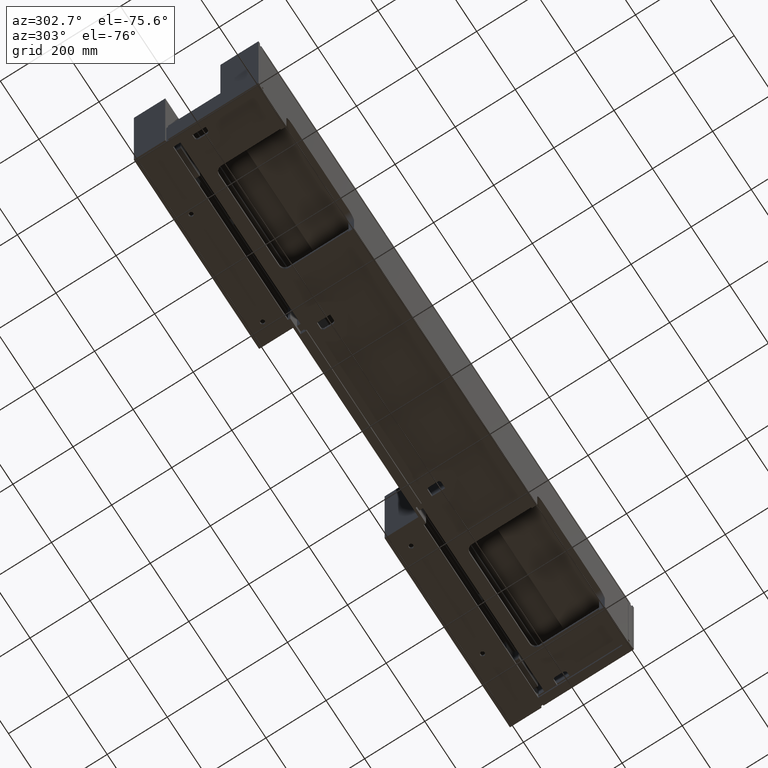
[diagram: clean part render]
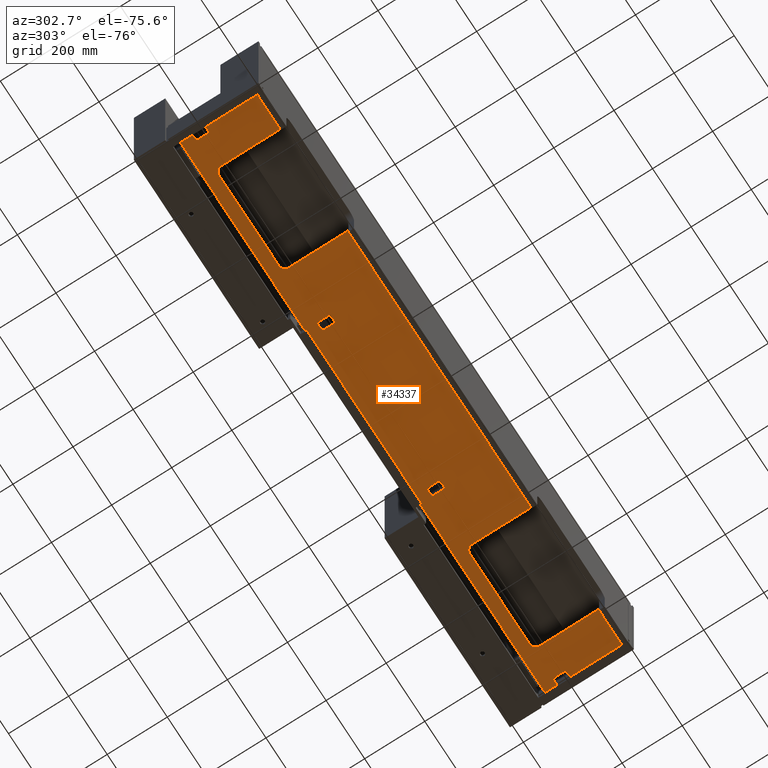
[diagram: same view with one face highlighted and labeled with its STEP entity id]
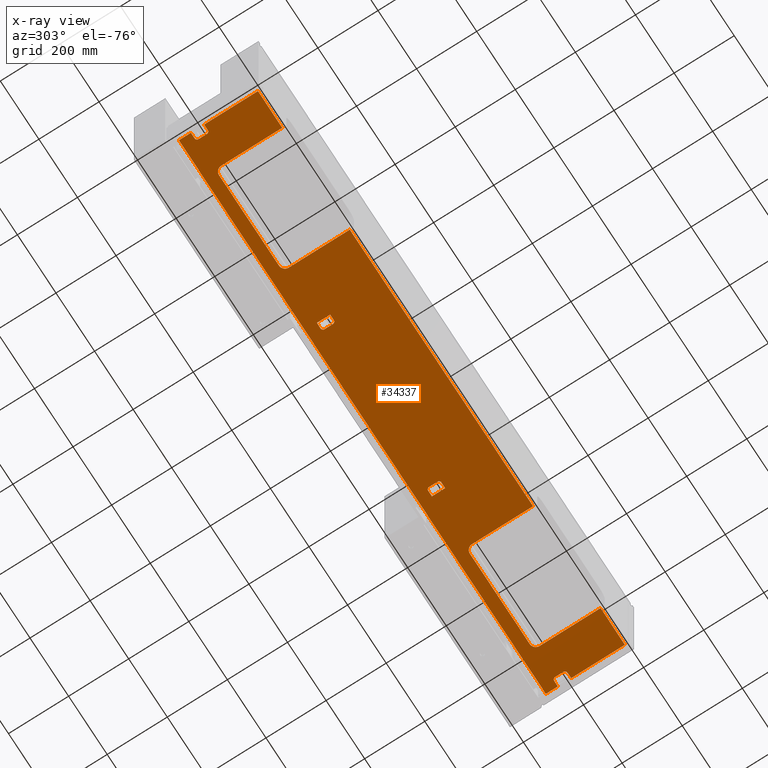
[diagram: x-ray of the same camera — body ghosted, the highlighted face saturated]
A machine part, auxiliary view. The second image highlights one B-rep face of the part: STEP entity #34337.
The next image is the same camera in x-ray: the body ghosted, the highlighted face saturated — about 0% of this face is hidden behind the body in this view.
In plain terms, the highlighted planar face has unit normal (0, -0, 1).
Its self-contained STEP definition (entity closure, byte-faithful):
#3 = LINE ( 'NONE', #11001, #25932 ) ;
#8 = VECTOR ( 'NONE', #2222, 1000.000000000000000 ) ;
#91 = ORIENTED_EDGE ( 'NONE', *, *, #30618, .F. ) ;
#252 = VERTEX_POINT ( 'NONE', #24749 ) ;
#375 = AXIS2_PLACEMENT_3D ( 'NONE', #7619, #18617, #29566 ) ;
#499 = CARTESIAN_POINT ( 'NONE',  ( 1906.999999999999773, 202.0000000000000000, -456.5000000000002842 ) ) ;
#704 = EDGE_CURVE ( 'NONE', #8030, #252, #30701, .T. ) ;
#712 = EDGE_CURVE ( 'NONE', #8847, #15838, #28373, .T. ) ;
#790 = DIRECTION ( 'NONE',  ( -0.0000000000000000000, 0.0000000000000000000, -1.000000000000000000 ) ) ;
#983 = EDGE_CURVE ( 'NONE', #32020, #17701, #12302, .T. ) ;
#999 = CARTESIAN_POINT ( 'NONE',  ( 1906.999999999999773, 194.0000000000000000, -456.5000000000002842 ) ) ;
#1305 = CARTESIAN_POINT ( 'NONE',  ( 1273.000000000000227, 193.9999999999998863, -456.5000000000003979 ) ) ;
#1311 = AXIS2_PLACEMENT_3D ( 'NONE', #25486, #790, #11804 ) ;
#1379 = ORIENTED_EDGE ( 'NONE', *, *, #29538, .F. ) ;
#1395 = EDGE_CURVE ( 'NONE', #2235, #2396, #29168, .T. ) ;
#1548 = EDGE_CURVE ( 'NONE', #31364, #23315, #8299, .T. ) ;
#1563 = ORIENTED_EDGE ( 'NONE', *, *, #31456, .F. ) ;
#1588 = DIRECTION ( 'NONE',  ( 1.000000000000000000, 0.0000000000000000000, 0.0000000000000000000 ) ) ;
#1609 = CARTESIAN_POINT ( 'NONE',  ( 50.99999999999982236, 230.0000000000000284, -456.5000000000002842 ) ) ;
#1763 = CIRCLE ( 'NONE', #21948, 8.000000000000007105 ) ;
#1785 = EDGE_CURVE ( 'NONE', #9377, #31032, #6065, .T. ) ;
#1947 = LINE ( 'NONE', #12975, #13549 ) ;
#2222 = DIRECTION ( 'NONE',  ( -1.000000000000000000, 0.0000000000000000000, 0.0000000000000000000 ) ) ;
#2235 = VERTEX_POINT ( 'NONE', #1305 ) ;
#2396 = VERTEX_POINT ( 'NONE', #13044 ) ;
#2406 = DIRECTION ( 'NONE',  ( 0.0000000000000000000, 0.0000000000000000000, -1.000000000000000000 ) ) ;
#2703 = EDGE_CURVE ( 'NONE', #24983, #4910, #6334, .T. ) ;
#2808 = ORIENTED_EDGE ( 'NONE', *, *, #704, .F. ) ;
#2873 = DIRECTION ( 'NONE',  ( -1.000000000000000000, 0.0000000000000000000, 0.0000000000000000000 ) ) ;
#2907 = DIRECTION ( 'NONE',  ( 1.000000000000000000, -1.460819769243634230E-15, 0.0000000000000000000 ) ) ;
#3006 = VECTOR ( 'NONE', #4336, 1000.000000000000000 ) ;
#3252 = ORIENTED_EDGE ( 'NONE', *, *, #22529, .F. ) ;
#3382 = LINE ( 'NONE', #14417, #4766 ) ;
#3492 = AXIS2_PLACEMENT_3D ( 'NONE', #17268, #12048, #23018 ) ;
#3575 = EDGE_CURVE ( 'NONE', #15220, #17377, #32897, .T. ) ;
#3629 = VERTEX_POINT ( 'NONE', #5939 ) ;
#3662 = CARTESIAN_POINT ( 'NONE',  ( 1273.000000000000227, 237.9999999999999432, -456.5000000000002842 ) ) ;
#3860 = CARTESIAN_POINT ( 'NONE',  ( 24.00000000000002132, 2181.067296390955562, -456.5000000000002842 ) ) ;
#3870 = ORIENTED_EDGE ( 'NONE', *, *, #9944, .F. ) ;
#3956 = CARTESIAN_POINT ( 'NONE',  ( 1254.000000000000455, 237.9999999999999432, -456.5000000000002842 ) ) ;
#4015 = DIRECTION ( 'NONE',  ( -0.0000000000000000000, 1.000000000000000000, -0.0000000000000000000 ) ) ;
#4020 = DIRECTION ( 'NONE',  ( -1.000000000000000000, 0.0000000000000000000, 0.0000000000000000000 ) ) ;
#4035 = EDGE_CURVE ( 'NONE', #32469, #8847, #5934, .T. ) ;
#4241 = EDGE_CURVE ( 'NONE', #24538, #27696, #8666, .T. ) ;
#4336 = DIRECTION ( 'NONE',  ( -1.000000000000000000, -1.460819769243634230E-15, -0.0000000000000000000 ) ) ;
#4477 = VERTEX_POINT ( 'NONE', #15307 ) ;
#4483 = CARTESIAN_POINT ( 'NONE',  ( 1273.000000000000227, 193.9999999999999432, -456.5000000000002842 ) ) ;
#4515 = CARTESIAN_POINT ( 'NONE',  ( 695.9999999999997726, 193.9999999999999432, -456.5000000000002842 ) ) ;
#4669 = CARTESIAN_POINT ( 'NONE',  ( 1273.000000000000227, 237.9999999999999432, -456.5000000000002842 ) ) ;
#4685 = EDGE_CURVE ( 'NONE', #6682, #15220, #13370, .T. ) ;
#4760 = VERTEX_POINT ( 'NONE', #11149 ) ;
#4766 = VECTOR ( 'NONE', #25392, 1000.000000000000000 ) ;
#4777 = VERTEX_POINT ( 'NONE', #8454 ) ;
#4885 = VERTEX_POINT ( 'NONE', #10218 ) ;
#4910 = VERTEX_POINT ( 'NONE', #18511 ) ;
#5292 = EDGE_CURVE ( 'NONE', #23315, #25733, #5451, .T. ) ;
#5451 = LINE ( 'NONE', #16463, #25408 ) ;
#5561 = EDGE_CURVE ( 'NONE', #4777, #4760, #6090, .T. ) ;
#5602 = EDGE_CURVE ( 'NONE', #4885, #15790, #23666, .T. ) ;
#5667 = ORIENTED_EDGE ( 'NONE', *, *, #5751, .T. ) ;
#5690 = LINE ( 'NONE', #16696, #6888 ) ;
#5726 = AXIS2_PLACEMENT_3D ( 'NONE', #31861, #7245, #18249 ) ;
#5751 = EDGE_CURVE ( 'NONE', #3629, #18149, #24448, .T. ) ;
#5934 = CIRCLE ( 'NONE', #1311, 8.000000000000007105 ) ;
#5939 = CARTESIAN_POINT ( 'NONE',  ( 1450.000000000000000, 15.00000000000004086, -456.5000000000003979 ) ) ;
#6065 = LINE ( 'NONE', #17068, #34626 ) ;
#6090 = LINE ( 'NONE', #17089, #11024 ) ;
#6209 = EDGE_CURVE ( 'NONE', #4777, #4477, #30776, .T. ) ;
#6334 = LINE ( 'NONE', #17330, #10497 ) ;
#6396 = DIRECTION ( 'NONE',  ( -9.160255978755420617E-17, 0.0000000000000000000, -1.000000000000000000 ) ) ;
#6405 = VERTEX_POINT ( 'NONE', #14962 ) ;
#6606 = LINE ( 'NONE', #17607, #19289 ) ;
#6682 = VERTEX_POINT ( 'NONE', #8464 ) ;
#6865 = AXIS2_PLACEMENT_3D ( 'NONE', #11291, #22274, #33173 ) ;
#6888 = VECTOR ( 'NONE', #27688, 1000.000000000000000 ) ;
#7007 = CARTESIAN_POINT ( 'NONE',  ( 150.0000000000000284, 218.0000000000000853, -456.5000000000002842 ) ) ;
#7019 = CARTESIAN_POINT ( 'NONE',  ( 42.99999999999992895, 194.0000000000000284, -456.5000000000002842 ) ) ;
#7049 = CARTESIAN_POINT ( 'NONE',  ( 676.9999999999997726, 237.9999999999999432, -456.5000000000003411 ) ) ;
#7130 = ORIENTED_EDGE ( 'NONE', *, *, #19456, .F. ) ;
#7167 = ORIENTED_EDGE ( 'NONE', *, *, #5292, .F. ) ;
#7200 = CARTESIAN_POINT ( 'NONE',  ( 1273.000000000000227, 237.9999999999999432, -456.5000000000002842 ) ) ;
#7245 = DIRECTION ( 'NONE',  ( -9.160255978755420617E-17, 0.0000000000000000000, -1.000000000000000000 ) ) ;
#7619 = CARTESIAN_POINT ( 'NONE',  ( 24.00000000000002132, 2181.067296390955562, -456.5000000000002842 ) ) ;
#7628 = CARTESIAN_POINT ( 'NONE',  ( 1246.000000000000455, 229.9999999999999147, -456.5000000000002842 ) ) ;
#7632 = ORIENTED_EDGE ( 'NONE', *, *, #15895, .F. ) ;
#7682 = EDGE_CURVE ( 'NONE', #11525, #4760, #28559, .T. ) ;
#8030 = VERTEX_POINT ( 'NONE', #30244 ) ;
#8205 = LINE ( 'NONE', #19201, #11300 ) ;
#8299 = LINE ( 'NONE', #19288, #22662 ) ;
#8314 = CARTESIAN_POINT ( 'NONE',  ( 703.9999999999997726, 229.9999999999999432, -456.5000000000002842 ) ) ;
#8421 = EDGE_CURVE ( 'NONE', #23777, #11525, #8205, .T. ) ;
#8454 = CARTESIAN_POINT ( 'NONE',  ( 150.6350832689630295, 15.00000000000001421, -456.5000000000002842 ) ) ;
#8464 = CARTESIAN_POINT ( 'NONE',  ( 695.9999999999997726, 237.9999999999999147, -456.5000000000002842 ) ) ;
#8666 = LINE ( 'NONE', #19656, #17446 ) ;
#8676 = EDGE_LOOP ( 'NONE', ( #23304, #23167, #22472, #21939, #21403, #21365 ) ) ;
#8678 = DIRECTION ( 'NONE',  ( -9.160255978755420617E-17, 0.0000000000000000000, -1.000000000000000000 ) ) ;
#8691 = CARTESIAN_POINT ( 'NONE',  ( 24.00000000000002132, 194.0000000000000000, -456.5000000000002842 ) ) ;
#8703 = DIRECTION ( 'NONE',  ( -0.0000000000000000000, 0.0000000000000000000, -1.000000000000000000 ) ) ;
#8847 = VERTEX_POINT ( 'NONE', #3956 ) ;
#9018 = DIRECTION ( 'NONE',  ( -0.0000000000000000000, 1.000000000000000000, -0.0000000000000000000 ) ) ;
#9094 = ORIENTED_EDGE ( 'NONE', *, *, #19647, .F. ) ;
#9104 = CARTESIAN_POINT ( 'NONE',  ( 480.0000000000000000, 238.0000000000000568, -456.5000000000003411 ) ) ;
#9358 = EDGE_CURVE ( 'NONE', #15790, #17701, #6606, .T. ) ;
#9377 = VERTEX_POINT ( 'NONE', #32480 ) ;
#9624 = ORIENTED_EDGE ( 'NONE', *, *, #17693, .F. ) ;
#9716 = LINE ( 'NONE', #20704, #25874 ) ;
#9820 = EDGE_CURVE ( 'NONE', #31364, #32020, #12439, .T. ) ;
#9899 = CIRCLE ( 'NONE', #30017, 7.999999999999986677 ) ;
#9944 = EDGE_CURVE ( 'NONE', #4477, #17697, #1947, .T. ) ;
#10165 = CIRCLE ( 'NONE', #30277, 19.99999999999998934 ) ;
#10201 = ORIENTED_EDGE ( 'NONE', *, *, #18792, .F. ) ;
#10218 = CARTESIAN_POINT ( 'NONE',  ( 1898.999999999999773, 230.0000000000000000, -456.5000000000002842 ) ) ;
#10272 = CIRCLE ( 'NONE', #30390, 7.999999999999979572 ) ;
#10322 = FACE_BOUND ( 'NONE', #25551, .T. ) ;
#10446 = DIRECTION ( 'NONE',  ( -0.0000000000000000000, 1.000000000000000000, -0.0000000000000000000 ) ) ;
#10468 = CARTESIAN_POINT ( 'NONE',  ( 42.99999999999992895, 230.0000000000000284, -456.5000000000002842 ) ) ;
#10497 = VECTOR ( 'NONE', #28306, 1000.000000000000000 ) ;
#10548 = AXIS2_PLACEMENT_3D ( 'NONE', #27115, #2406, #13439 ) ;
#10605 = AXIS2_PLACEMENT_3D ( 'NONE', #31040, #6396, #17397 ) ;
#10660 = VECTOR ( 'NONE', #34298, 1000.000000000000000 ) ;
#10761 = DIRECTION ( 'NONE',  ( -1.000000000000000000, -0.0000000000000000000, 8.755702086949185103E-17 ) ) ;
#11001 = CARTESIAN_POINT ( 'NONE',  ( 1800.000000000000000, 218.0000000000000284, -456.5000000000004547 ) ) ;
#11024 = VECTOR ( 'NONE', #28074, 1000.000000000000000 ) ;
#11149 = CARTESIAN_POINT ( 'NONE',  ( 24.00000000000002132, 15.00000000000001421, -456.5000000000002842 ) ) ;
#11271 = VECTOR ( 'NONE', #14885, 1000.000000000000000 ) ;
#11288 = AXIS2_PLACEMENT_3D ( 'NONE', #499, #11510, #22493 ) ;
#11291 = CARTESIAN_POINT ( 'NONE',  ( 1780.000000000000000, 218.0000000000000284, -456.5000000000004547 ) ) ;
#11300 = VECTOR ( 'NONE', #30157, 1000.000000000000000 ) ;
#11317 = ORIENTED_EDGE ( 'NONE', *, *, #21825, .F. ) ;
#11448 = ORIENTED_EDGE ( 'NONE', *, *, #2703, .T. ) ;
#11510 = DIRECTION ( 'NONE',  ( 0.0000000000000000000, 0.0000000000000000000, -1.000000000000000000 ) ) ;
#11525 = VERTEX_POINT ( 'NONE', #8691 ) ;
#11787 = VECTOR ( 'NONE', #10761, 1000.000000000000000 ) ;
#11804 = DIRECTION ( 'NONE',  ( 1.000000000000000000, 0.0000000000000000000, 0.0000000000000000000 ) ) ;
#12048 = DIRECTION ( 'NONE',  ( -0.0000000000000000000, 0.0000000000000000000, -1.000000000000000000 ) ) ;
#12302 = LINE ( 'NONE', #23278, #17486 ) ;
#12315 = CARTESIAN_POINT ( 'NONE',  ( 24.00000000000002132, 278.0000000000000000, -456.5000000000002842 ) ) ;
#12418 = CARTESIAN_POINT ( 'NONE',  ( 1246.000000000000455, 201.9999999999999432, -456.5000000000002842 ) ) ;
#12439 = LINE ( 'NONE', #23418, #10660 ) ;
#12642 = CARTESIAN_POINT ( 'NONE',  ( 1906.999999999999773, 238.0000000000000284, -456.5000000000002842 ) ) ;
#12774 = CARTESIAN_POINT ( 'NONE',  ( 1925.999999999999773, 238.0000000000000284, -456.5000000000002842 ) ) ;
#12975 = CARTESIAN_POINT ( 'NONE',  ( 150.0000000000000284, 218.0000000000000853, -456.5000000000002842 ) ) ;
#13041 = ORIENTED_EDGE ( 'NONE', *, *, #26765, .T. ) ;
#13044 = CARTESIAN_POINT ( 'NONE',  ( 1254.000000000000455, 193.9999999999999432, -456.5000000000002842 ) ) ;
#13087 = ORIENTED_EDGE ( 'NONE', *, *, #19942, .F. ) ;
#13370 = CIRCLE ( 'NONE', #28864, 8.000000000000007105 ) ;
#13439 = DIRECTION ( 'NONE',  ( -1.000000000000000000, 0.0000000000000000000, 0.0000000000000000000 ) ) ;
#13504 = CARTESIAN_POINT ( 'NONE',  ( 695.9999999999997726, 229.9999999999999432, -456.5000000000002842 ) ) ;
#13549 = VECTOR ( 'NONE', #23963, 1000.000000000000000 ) ;
#14129 = VECTOR ( 'NONE', #2907, 1000.000000000000000 ) ;
#14417 = CARTESIAN_POINT ( 'NONE',  ( 1925.999999999999773, 2181.067296390955562, -456.5000000000004547 ) ) ;
#14697 = DIRECTION ( 'NONE',  ( 1.000000000000000000, -0.0000000000000000000, -0.0000000000000000000 ) ) ;
#14752 = AXIS2_PLACEMENT_3D ( 'NONE', #17752, #28715, #4020 ) ;
#14885 = DIRECTION ( 'NONE',  ( -0.0000000000000000000, -1.000000000000000000, -0.0000000000000000000 ) ) ;
#14908 = EDGE_LOOP ( 'NONE', ( #18090, #17251, #17243, #16316, #15783, #13087, #13041, #11448, #11317, #10201, #9624, #2808, #3252, #5667, #7130, #32876, #91, #1379, #1563, #3870, #34228, #34610, #33921, #34173, #31872, #9094, #7632, #7167, #31060, #30454 ) ) ;
#14962 = CARTESIAN_POINT ( 'NONE',  ( 170.0000000000000284, 238.0000000000000853, -456.5000000000002842 ) ) ;
#15220 = VERTEX_POINT ( 'NONE', #16499 ) ;
#15226 = CARTESIAN_POINT ( 'NONE',  ( 676.9999999999997726, 193.9999999999999147, -456.5000000000002842 ) ) ;
#15276 = AXIS2_PLACEMENT_3D ( 'NONE', #16605, #27594, #2873 ) ;
#15307 = CARTESIAN_POINT ( 'NONE',  ( 150.0000000000001421, 19.99999999999998934, -456.5000000000002842 ) ) ;
#15313 = CARTESIAN_POINT ( 'NONE',  ( 42.99999999999992895, 202.0000000000000000, -456.5000000000002842 ) ) ;
#15507 = DIRECTION ( 'NONE',  ( -1.000000000000000000, 1.460819769243651388E-15, 0.0000000000000000000 ) ) ;
#15783 = ORIENTED_EDGE ( 'NONE', *, *, #30042, .F. ) ;
#15790 = VERTEX_POINT ( 'NONE', #12642 ) ;
#15838 = VERTEX_POINT ( 'NONE', #4669 ) ;
#15895 = EDGE_CURVE ( 'NONE', #25733, #26320, #10272, .T. ) ;
#15945 = LINE ( 'NONE', #26926, #8 ) ;
#16316 = ORIENTED_EDGE ( 'NONE', *, *, #33705, .F. ) ;
#16463 = CARTESIAN_POINT ( 'NONE',  ( 24.00000000000002132, 238.0000000000000284, -456.5000000000002842 ) ) ;
#16499 = CARTESIAN_POINT ( 'NONE',  ( 703.9999999999997726, 229.9999999999999432, -456.5000000000002842 ) ) ;
#16503 = CARTESIAN_POINT ( 'NONE',  ( 1925.999999999999773, 194.0000000000000000, -456.5000000000002842 ) ) ;
#16605 = CARTESIAN_POINT ( 'NONE',  ( 170.0000000000001421, 19.99999999999998934, -456.5000000000002842 ) ) ;
#16636 = LINE ( 'NONE', #27625, #14129 ) ;
#16637 = VERTEX_POINT ( 'NONE', #31895 ) ;
#16696 = CARTESIAN_POINT ( 'NONE',  ( 50.99999999999993605, 230.0000000000000284, -456.5000000000002842 ) ) ;
#16981 = VECTOR ( 'NONE', #20095, 1000.000000000000000 ) ;
#17068 = CARTESIAN_POINT ( 'NONE',  ( 500.0000000000001137, 218.0000000000000284, -456.5000000000003411 ) ) ;
#17089 = CARTESIAN_POINT ( 'NONE',  ( 24.00000000000002132, 15.00000000000001421, -456.5000000000002842 ) ) ;
#17243 = ORIENTED_EDGE ( 'NONE', *, *, #5602, .F. ) ;
#17251 = ORIENTED_EDGE ( 'NONE', *, *, #9358, .F. ) ;
#17268 = CARTESIAN_POINT ( 'NONE',  ( 1906.999999999999773, 230.0000000000000000, -456.5000000000002842 ) ) ;
#17330 = CARTESIAN_POINT ( 'NONE',  ( 24.00000000000002132, 15.00000000000001421, -456.5000000000002842 ) ) ;
#17377 = VERTEX_POINT ( 'NONE', #34413 ) ;
#17397 = DIRECTION ( 'NONE',  ( 1.000000000000000000, 0.0000000000000000000, 0.0000000000000000000 ) ) ;
#17446 = VECTOR ( 'NONE', #30602, 1000.000000000000000 ) ;
#17486 = VECTOR ( 'NONE', #34159, 1000.000000000000000 ) ;
#17607 = CARTESIAN_POINT ( 'NONE',  ( 1925.999999999999773, 238.0000000000000284, -456.5000000000002842 ) ) ;
#17693 = EDGE_CURVE ( 'NONE', #252, #23480, #9716, .T. ) ;
#17697 = VERTEX_POINT ( 'NONE', #7007 ) ;
#17701 = VERTEX_POINT ( 'NONE', #12774 ) ;
#17745 = CARTESIAN_POINT ( 'NONE',  ( 50.99999999999982236, 202.0000000000000000, -456.5000000000002842 ) ) ;
#17752 = CARTESIAN_POINT ( 'NONE',  ( 480.0000000000000568, 218.0000000000000000, -456.5000000000003411 ) ) ;
#18015 = CARTESIAN_POINT ( 'NONE',  ( 1898.999999999999773, 202.0000000000000000, -456.5000000000002842 ) ) ;
#18069 = LINE ( 'NONE', #29023, #3006 ) ;
#18090 = ORIENTED_EDGE ( 'NONE', *, *, #983, .T. ) ;
#18149 = VERTEX_POINT ( 'NONE', #19127 ) ;
#18208 = DIRECTION ( 'NONE',  ( 0.0000000000000000000, -1.000000000000000000, 0.0000000000000000000 ) ) ;
#18249 = DIRECTION ( 'NONE',  ( -1.000000000000000000, 0.0000000000000000000, 0.0000000000000000000 ) ) ;
#18251 = CARTESIAN_POINT ( 'NONE',  ( 1925.999999999999773, 15.00000000000001421, -456.5000000000004547 ) ) ;
#18324 = VERTEX_POINT ( 'NONE', #18015 ) ;
#18495 = ORIENTED_EDGE ( 'NONE', *, *, #25860, .F. ) ;
#18511 = CARTESIAN_POINT ( 'NONE',  ( 1800.000000000000000, 15.00000000000001421, -456.5000000000004547 ) ) ;
#18617 = DIRECTION ( 'NONE',  ( 8.755702086949185103E-17, -0.0000000000000000000, 1.000000000000000000 ) ) ;
#18792 = EDGE_CURVE ( 'NONE', #23480, #23731, #22408, .T. ) ;
#19127 = CARTESIAN_POINT ( 'NONE',  ( 499.3649167310372832, 15.00000000000001421, -456.5000000000003411 ) ) ;
#19201 = CARTESIAN_POINT ( 'NONE',  ( 24.00000000000002132, 194.0000000000000000, -456.5000000000002842 ) ) ;
#19245 = ORIENTED_EDGE ( 'NONE', *, *, #29587, .F. ) ;
#19288 = CARTESIAN_POINT ( 'NONE',  ( 24.00000000000002132, 2181.067296390955562, -456.5000000000002842 ) ) ;
#19289 = VECTOR ( 'NONE', #28575, 1000.000000000000000 ) ;
#19307 = DIRECTION ( 'NONE',  ( 0.0000000000000000000, -1.000000000000000000, 0.0000000000000000000 ) ) ;
#19342 = ORIENTED_EDGE ( 'NONE', *, *, #4035, .F. ) ;
#19456 = EDGE_CURVE ( 'NONE', #31032, #18149, #21275, .T. ) ;
#19647 = EDGE_CURVE ( 'NONE', #26320, #29581, #5690, .T. ) ;
#19656 = CARTESIAN_POINT ( 'NONE',  ( 676.9999999999997726, 237.9999999999999432, -456.5000000000002842 ) ) ;
#19672 = DIRECTION ( 'NONE',  ( 1.000000000000000000, 0.0000000000000000000, 0.0000000000000000000 ) ) ;
#19687 = ORIENTED_EDGE ( 'NONE', *, *, #712, .F. ) ;
#19698 = DIRECTION ( 'NONE',  ( 1.000000000000000000, 0.0000000000000000000, 0.0000000000000000000 ) ) ;
#19778 = ORIENTED_EDGE ( 'NONE', *, *, #25412, .F. ) ;
#19942 = EDGE_CURVE ( 'NONE', #27616, #35354, #15945, .T. ) ;
#20095 = DIRECTION ( 'NONE',  ( 1.000000000000000000, -8.953411488912554654E-17, -1.790682297782510931E-16 ) ) ;
#20301 = ORIENTED_EDGE ( 'NONE', *, *, #1395, .F. ) ;
#20704 = CARTESIAN_POINT ( 'NONE',  ( 1780.000000000000000, 238.0000000000000568, -456.5000000000004547 ) ) ;
#20887 = VECTOR ( 'NONE', #18208, 1000.000000000000000 ) ;
#21275 = CIRCLE ( 'NONE', #5726, 20.00000000000001776 ) ;
#21308 = FACE_OUTER_BOUND ( 'NONE', #14908, .T. ) ;
#21365 = ORIENTED_EDGE ( 'NONE', *, *, #4685, .F. ) ;
#21403 = ORIENTED_EDGE ( 'NONE', *, *, #3575, .F. ) ;
#21453 = DIRECTION ( 'NONE',  ( 0.0000000000000000000, 0.0000000000000000000, -1.000000000000000000 ) ) ;
#21825 = EDGE_CURVE ( 'NONE', #23731, #4910, #3, .T. ) ;
#21939 = ORIENTED_EDGE ( 'NONE', *, *, #22340, .F. ) ;
#21948 = AXIS2_PLACEMENT_3D ( 'NONE', #33291, #8703, #19698 ) ;
#21986 = DIRECTION ( 'NONE',  ( 0.0000000000000000000, -1.000000000000000000, 0.0000000000000000000 ) ) ;
#22185 = CARTESIAN_POINT ( 'NONE',  ( 500.0000000000002274, 19.99999999999996092, -456.5000000000003411 ) ) ;
#22274 = DIRECTION ( 'NONE',  ( -9.160255978755420617E-17, 0.0000000000000000000, -1.000000000000000000 ) ) ;
#22340 = EDGE_CURVE ( 'NONE', #17377, #24995, #1763, .T. ) ;
#22408 = CIRCLE ( 'NONE', #6865, 20.00000000000001776 ) ;
#22472 = ORIENTED_EDGE ( 'NONE', *, *, #24980, .F. ) ;
#22493 = DIRECTION ( 'NONE',  ( -1.000000000000000000, 0.0000000000000000000, 0.0000000000000000000 ) ) ;
#22529 = EDGE_CURVE ( 'NONE', #3629, #8030, #22704, .T. ) ;
#22662 = VECTOR ( 'NONE', #30245, 1000.000000000000000 ) ;
#22704 = LINE ( 'NONE', #33593, #23094 ) ;
#22962 = LINE ( 'NONE', #28710, #24469 ) ;
#23018 = DIRECTION ( 'NONE',  ( 1.000000000000000000, 0.0000000000000000000, 0.0000000000000000000 ) ) ;
#23094 = VECTOR ( 'NONE', #9018, 1000.000000000000000 ) ;
#23167 = ORIENTED_EDGE ( 'NONE', *, *, #4241, .F. ) ;
#23278 = CARTESIAN_POINT ( 'NONE',  ( 1925.999999999999773, 2181.067296390955562, -456.5000000000004547 ) ) ;
#23304 = ORIENTED_EDGE ( 'NONE', *, *, #29795, .F. ) ;
#23315 = VERTEX_POINT ( 'NONE', #31391 ) ;
#23418 = CARTESIAN_POINT ( 'NONE',  ( 24.00000000000002132, 278.0000000000000000, -456.5000000000002842 ) ) ;
#23480 = VERTEX_POINT ( 'NONE', #24402 ) ;
#23666 = CIRCLE ( 'NONE', #3492, 8.000000000000007105 ) ;
#23731 = VERTEX_POINT ( 'NONE', #34112 ) ;
#23777 = VERTEX_POINT ( 'NONE', #7019 ) ;
#23817 = EDGE_CURVE ( 'NONE', #29581, #23777, #9899, .T. ) ;
#23963 = DIRECTION ( 'NONE',  ( -5.607186993056343813E-16, 1.000000000000000000, -0.0000000000000000000 ) ) ;
#24142 = LINE ( 'NONE', #34993, #29691 ) ;
#24402 = CARTESIAN_POINT ( 'NONE',  ( 1780.000000000000000, 238.0000000000000568, -456.5000000000004547 ) ) ;
#24448 = LINE ( 'NONE', #35296, #11787 ) ;
#24469 = VECTOR ( 'NONE', #4015, 1000.000000000000000 ) ;
#24484 = DIRECTION ( 'NONE',  ( 0.0000000000000000000, 0.0000000000000000000, -1.000000000000000000 ) ) ;
#24538 = VERTEX_POINT ( 'NONE', #15226 ) ;
#24749 = CARTESIAN_POINT ( 'NONE',  ( 1470.000000000000000, 238.0000000000000853, -456.5000000000003979 ) ) ;
#24900 = VECTOR ( 'NONE', #19307, 1000.000000000000000 ) ;
#24980 = EDGE_CURVE ( 'NONE', #24995, #24538, #18069, .T. ) ;
#24983 = VERTEX_POINT ( 'NONE', #18251 ) ;
#24995 = VERTEX_POINT ( 'NONE', #4515 ) ;
#25392 = DIRECTION ( 'NONE',  ( -0.0000000000000000000, -1.000000000000000000, -0.0000000000000000000 ) ) ;
#25408 = VECTOR ( 'NONE', #27458, 1000.000000000000000 ) ;
#25412 = EDGE_CURVE ( 'NONE', #15838, #2235, #31820, .T. ) ;
#25486 = CARTESIAN_POINT ( 'NONE',  ( 1254.000000000000455, 229.9999999999999147, -456.5000000000002842 ) ) ;
#25551 = EDGE_LOOP ( 'NONE', ( #20301, #19778, #19687, #19342, #19245, #18495 ) ) ;
#25733 = VERTEX_POINT ( 'NONE', #26568 ) ;
#25860 = EDGE_CURVE ( 'NONE', #2396, #26946, #26062, .T. ) ;
#25874 = VECTOR ( 'NONE', #31634, 1000.000000000000000 ) ;
#25932 = VECTOR ( 'NONE', #21986, 1000.000000000000000 ) ;
#26062 = CIRCLE ( 'NONE', #10548, 8.000000000000007105 ) ;
#26092 = VECTOR ( 'NONE', #15507, 1000.000000000000000 ) ;
#26109 = VECTOR ( 'NONE', #14697, 1000.000000000000000 ) ;
#26290 = DIRECTION ( 'NONE',  ( -0.0000000000000000000, 0.0000000000000000000, -1.000000000000000000 ) ) ;
#26320 = VERTEX_POINT ( 'NONE', #1609 ) ;
#26568 = CARTESIAN_POINT ( 'NONE',  ( 42.99999999999992895, 238.0000000000000000, -456.5000000000002842 ) ) ;
#26765 = EDGE_CURVE ( 'NONE', #27616, #24983, #3382, .T. ) ;
#26800 = CIRCLE ( 'NONE', #11288, 8.000000000000007105 ) ;
#26926 = CARTESIAN_POINT ( 'NONE',  ( 1925.999999999999773, 194.0000000000000000, -456.5000000000002842 ) ) ;
#26946 = VERTEX_POINT ( 'NONE', #12418 ) ;
#27115 = CARTESIAN_POINT ( 'NONE',  ( 1254.000000000000455, 201.9999999999999432, -456.5000000000002842 ) ) ;
#27458 = DIRECTION ( 'NONE',  ( 1.000000000000000000, -1.460819769243634033E-15, 0.0000000000000000000 ) ) ;
#27594 = DIRECTION ( 'NONE',  ( -9.160255978755420617E-17, 0.0000000000000000000, -1.000000000000000000 ) ) ;
#27616 = VERTEX_POINT ( 'NONE', #16503 ) ;
#27625 = CARTESIAN_POINT ( 'NONE',  ( 676.9999999999997726, 237.9999999999999432, -456.5000000000002842 ) ) ;
#27688 = DIRECTION ( 'NONE',  ( -2.478176394252579662E-16, -1.000000000000000000, 0.0000000000000000000 ) ) ;
#27696 = VERTEX_POINT ( 'NONE', #7049 ) ;
#28052 = DIRECTION ( 'NONE',  ( 5.607186993056344799E-16, -1.000000000000000000, 0.0000000000000000000 ) ) ;
#28074 = DIRECTION ( 'NONE',  ( -1.000000000000000000, -0.0000000000000000000, 8.755702086949185103E-17 ) ) ;
#28306 = DIRECTION ( 'NONE',  ( -1.000000000000000000, -0.0000000000000000000, 8.755702086949185103E-17 ) ) ;
#28373 = LINE ( 'NONE', #3662, #26109 ) ;
#28559 = LINE ( 'NONE', #3860, #11271 ) ;
#28575 = DIRECTION ( 'NONE',  ( 1.000000000000000000, -0.0000000000000000000, -0.0000000000000000000 ) ) ;
#28710 = CARTESIAN_POINT ( 'NONE',  ( 1246.000000000000455, 229.9999999999999147, -456.5000000000002842 ) ) ;
#28715 = DIRECTION ( 'NONE',  ( -9.160255978755420617E-17, 0.0000000000000000000, -1.000000000000000000 ) ) ;
#28864 = AXIS2_PLACEMENT_3D ( 'NONE', #13504, #24484, #35329 ) ;
#29023 = CARTESIAN_POINT ( 'NONE',  ( 676.9999999999997726, 193.9999999999999147, -456.5000000000002842 ) ) ;
#29168 = LINE ( 'NONE', #4483, #26092 ) ;
#29538 = EDGE_CURVE ( 'NONE', #6405, #16637, #33682, .T. ) ;
#29566 = DIRECTION ( 'NONE',  ( 1.000000000000000000, 0.0000000000000000000, -8.755702086949185103E-17 ) ) ;
#29581 = VERTEX_POINT ( 'NONE', #17745 ) ;
#29587 = EDGE_CURVE ( 'NONE', #26946, #32469, #22962, .T. ) ;
#29691 = VECTOR ( 'NONE', #10446, 1000.000000000000000 ) ;
#29795 = EDGE_CURVE ( 'NONE', #27696, #6682, #16636, .T. ) ;
#30017 = AXIS2_PLACEMENT_3D ( 'NONE', #15313, #26290, #1588 ) ;
#30042 = EDGE_CURVE ( 'NONE', #35354, #18324, #26800, .T. ) ;
#30157 = DIRECTION ( 'NONE',  ( -1.000000000000000000, -1.460819769243633442E-15, -0.0000000000000000000 ) ) ;
#30244 = CARTESIAN_POINT ( 'NONE',  ( 1450.000000000000000, 218.0000000000000853, -456.5000000000003979 ) ) ;
#30245 = DIRECTION ( 'NONE',  ( -0.0000000000000000000, -1.000000000000000000, -0.0000000000000000000 ) ) ;
#30259 = CIRCLE ( 'NONE', #14752, 20.00000000000007461 ) ;
#30277 = AXIS2_PLACEMENT_3D ( 'NONE', #33266, #8678, #19672 ) ;
#30390 = AXIS2_PLACEMENT_3D ( 'NONE', #10468, #21453, #32368 ) ;
#30454 = ORIENTED_EDGE ( 'NONE', *, *, #9820, .T. ) ;
#30602 = DIRECTION ( 'NONE',  ( -0.0000000000000000000, 1.000000000000000000, -0.0000000000000000000 ) ) ;
#30618 = EDGE_CURVE ( 'NONE', #16637, #9377, #30259, .T. ) ;
#30701 = CIRCLE ( 'NONE', #10605, 20.00000000000001776 ) ;
#30776 = CIRCLE ( 'NONE', #15276, 19.99999999999998934 ) ;
#31032 = VERTEX_POINT ( 'NONE', #22185 ) ;
#31040 = CARTESIAN_POINT ( 'NONE',  ( 1470.000000000000000, 218.0000000000000568, -456.5000000000003979 ) ) ;
#31060 = ORIENTED_EDGE ( 'NONE', *, *, #1548, .F. ) ;
#31364 = VERTEX_POINT ( 'NONE', #12315 ) ;
#31391 = CARTESIAN_POINT ( 'NONE',  ( 24.00000000000002132, 238.0000000000000284, -456.5000000000002842 ) ) ;
#31456 = EDGE_CURVE ( 'NONE', #17697, #6405, #10165, .T. ) ;
#31634 = DIRECTION ( 'NONE',  ( 1.000000000000000000, -8.953411488912550956E-17, -1.790682297782510191E-16 ) ) ;
#31820 = LINE ( 'NONE', #7200, #20887 ) ;
#31861 = CARTESIAN_POINT ( 'NONE',  ( 480.0000000000001705, 19.99999999999996092, -456.5000000000003411 ) ) ;
#31872 = ORIENTED_EDGE ( 'NONE', *, *, #23817, .F. ) ;
#31895 = CARTESIAN_POINT ( 'NONE',  ( 480.0000000000000000, 238.0000000000000568, -456.5000000000003411 ) ) ;
#32020 = VERTEX_POINT ( 'NONE', #34921 ) ;
#32224 = PLANE ( 'NONE',  #375 ) ;
#32368 = DIRECTION ( 'NONE',  ( -1.000000000000000000, 0.0000000000000000000, 0.0000000000000000000 ) ) ;
#32469 = VERTEX_POINT ( 'NONE', #7628 ) ;
#32480 = CARTESIAN_POINT ( 'NONE',  ( 500.0000000000001137, 218.0000000000000284, -456.5000000000003411 ) ) ;
#32876 = ORIENTED_EDGE ( 'NONE', *, *, #1785, .F. ) ;
#32897 = LINE ( 'NONE', #8314, #24900 ) ;
#33173 = DIRECTION ( 'NONE',  ( -1.000000000000000000, 0.0000000000000000000, 0.0000000000000000000 ) ) ;
#33266 = CARTESIAN_POINT ( 'NONE',  ( 170.0000000000000284, 218.0000000000000853, -456.5000000000002842 ) ) ;
#33291 = CARTESIAN_POINT ( 'NONE',  ( 695.9999999999997726, 201.9999999999999432, -456.5000000000002842 ) ) ;
#33593 = CARTESIAN_POINT ( 'NONE',  ( 1450.000000000000000, 218.0000000000000853, -456.5000000000003979 ) ) ;
#33682 = LINE ( 'NONE', #9104, #16981 ) ;
#33705 = EDGE_CURVE ( 'NONE', #18324, #4885, #24142, .T. ) ;
#33921 = ORIENTED_EDGE ( 'NONE', *, *, #7682, .F. ) ;
#34112 = CARTESIAN_POINT ( 'NONE',  ( 1800.000000000000000, 218.0000000000000284, -456.5000000000004547 ) ) ;
#34159 = DIRECTION ( 'NONE',  ( -0.0000000000000000000, -1.000000000000000000, -0.0000000000000000000 ) ) ;
#34173 = ORIENTED_EDGE ( 'NONE', *, *, #8421, .F. ) ;
#34228 = ORIENTED_EDGE ( 'NONE', *, *, #6209, .F. ) ;
#34298 = DIRECTION ( 'NONE',  ( 1.000000000000000000, 0.0000000000000000000, -8.755702086949185103E-17 ) ) ;
#34337 = ADVANCED_FACE ( 'NONE', ( #34873, #10322, #21308 ), #32224, .F. ) ;
#34413 = CARTESIAN_POINT ( 'NONE',  ( 703.9999999999997726, 201.9999999999999432, -456.5000000000002842 ) ) ;
#34610 = ORIENTED_EDGE ( 'NONE', *, *, #5561, .T. ) ;
#34626 = VECTOR ( 'NONE', #28052, 1000.000000000000000 ) ;
#34873 = FACE_BOUND ( 'NONE', #8676, .T. ) ;
#34921 = CARTESIAN_POINT ( 'NONE',  ( 1925.999999999999773, 278.0000000000000000, -456.5000000000004547 ) ) ;
#34993 = CARTESIAN_POINT ( 'NONE',  ( 1898.999999999999773, 230.0000000000000000, -456.5000000000002842 ) ) ;
#35296 = CARTESIAN_POINT ( 'NONE',  ( 24.00000000000002132, 15.00000000000001421, -456.5000000000002842 ) ) ;
#35329 = DIRECTION ( 'NONE',  ( -1.000000000000000000, 0.0000000000000000000, 0.0000000000000000000 ) ) ;
#35354 = VERTEX_POINT ( 'NONE', #999 ) ;